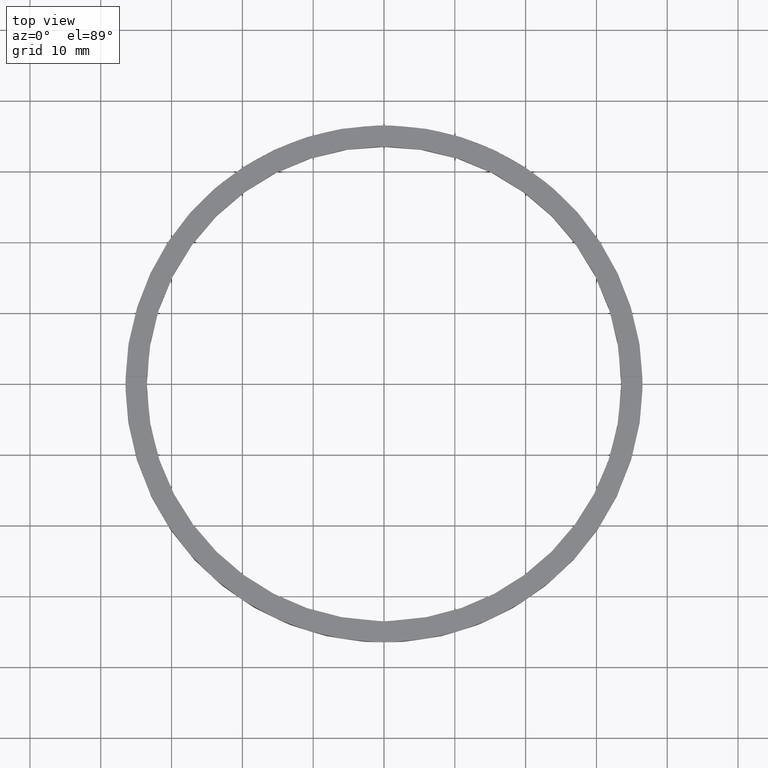
[diagram: clean part render]
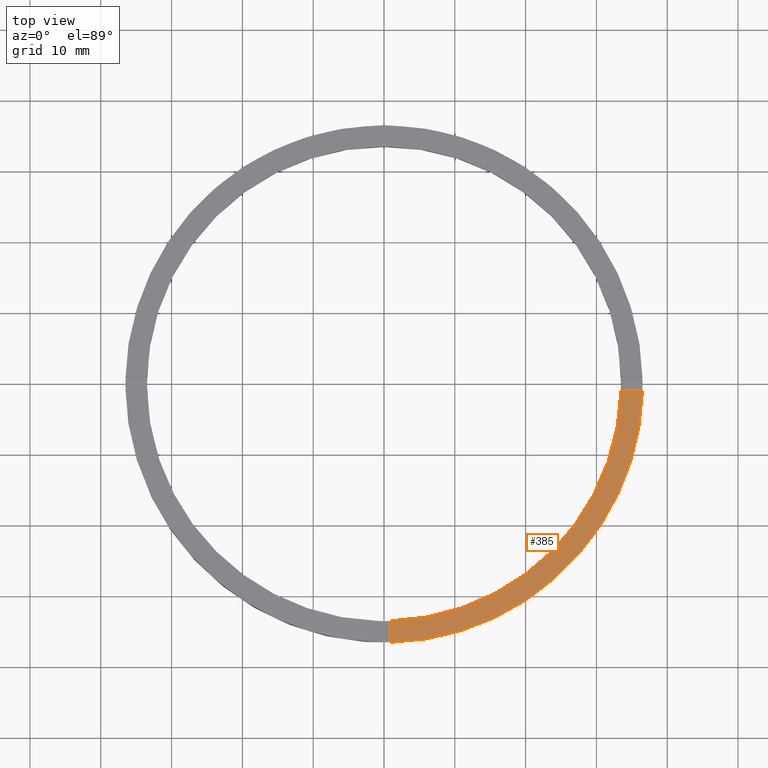
[diagram: same view with one face highlighted and labeled with its STEP entity id]
A machine part, top view. The second image highlights one B-rep face of the part: STEP entity #385.
In plain terms, the highlighted planar face has unit normal (0, 0, 1).
Its self-contained STEP definition (entity closure, byte-faithful):
#16 = AXIS2_PLACEMENT_3D ( 'NONE', #36, #525, #600 ) ;
#36 = CARTESIAN_POINT ( 'NONE',  ( 0.000000000000000000, 0.000000000000000000, 3.500000000000000000 ) ) ;
#45 = DIRECTION ( 'NONE',  ( 1.000000000000000000, 0.000000000000000000, 0.000000000000000000 ) ) ;
#48 = FACE_OUTER_BOUND ( 'NONE', #466, .T. ) ;
#81 = ORIENTED_EDGE ( 'NONE', *, *, #450, .F. ) ;
#85 = LINE ( 'NONE', #262, #328 ) ;
#101 = VERTEX_POINT ( 'NONE', #474 ) ;
#196 = CARTESIAN_POINT ( 'NONE',  ( 0.000000000000000000, 0.000000000000000000, 3.500000000000000000 ) ) ;
#236 = CARTESIAN_POINT ( 'NONE',  ( 0.9999999999998386846, -26.50000000000017764, 3.500000000000000000 ) ) ;
#262 = CARTESIAN_POINT ( 'NONE',  ( 26.49999999999998934, -1.000000000000158318, 3.500000000000000000 ) ) ;
#280 = DIRECTION ( 'NONE',  ( 0.000000000000000000, 0.000000000000000000, 1.000000000000000000 ) ) ;
#295 = VERTEX_POINT ( 'NONE', #402 ) ;
#319 = ORIENTED_EDGE ( 'NONE', *, *, #715, .T. ) ;
#328 = VECTOR ( 'NONE', #355, 1000.000000000000000 ) ;
#341 = CIRCLE ( 'NONE', #16, 33.50000000000000000 ) ;
#351 = VERTEX_POINT ( 'NONE', #773 ) ;
#353 = CIRCLE ( 'NONE', #425, 36.50000000000000000 ) ;
#355 = DIRECTION ( 'NONE',  ( 1.000000000000000000, 6.505213034913025371E-17, 0.000000000000000000 ) ) ;
#385 = ADVANCED_FACE ( 'NONE', ( #48 ), #527, .T. ) ;
#402 = CARTESIAN_POINT ( 'NONE',  ( 0.9999999999998395728, -33.48507130050644776, 3.500000000000000000 ) ) ;
#410 = ORIENTED_EDGE ( 'NONE', *, *, #682, .F. ) ;
#425 = AXIS2_PLACEMENT_3D ( 'NONE', #441, #485, #45 ) ;
#431 = AXIS2_PLACEMENT_3D ( 'NONE', #196, #280, #772 ) ;
#441 = CARTESIAN_POINT ( 'NONE',  ( 0.000000000000000000, 0.000000000000000000, 3.500000000000000000 ) ) ;
#450 = EDGE_CURVE ( 'NONE', #351, #295, #557, .T. ) ;
#466 = EDGE_LOOP ( 'NONE', ( #410, #598, #81, #319 ) ) ;
#474 = CARTESIAN_POINT ( 'NONE',  ( 36.48629879831604939, -1.000000000000157652, 3.500000000000000000 ) ) ;
#485 = DIRECTION ( 'NONE',  ( 0.000000000000000000, 0.000000000000000000, 1.000000000000000000 ) ) ;
#525 = DIRECTION ( 'NONE',  ( 0.000000000000000000, 0.000000000000000000, 1.000000000000000000 ) ) ;
#527 = PLANE ( 'NONE',  #431 ) ;
#545 = VECTOR ( 'NONE', #709, 1000.000000000000000 ) ;
#557 = LINE ( 'NONE', #236, #545 ) ;
#577 = VERTEX_POINT ( 'NONE', #580 ) ;
#580 = CARTESIAN_POINT ( 'NONE',  ( 33.48507130050644065, -1.000000000000157874, 3.500000000000000000 ) ) ;
#598 = ORIENTED_EDGE ( 'NONE', *, *, #765, .F. ) ;
#600 = DIRECTION ( 'NONE',  ( 1.000000000000000000, 0.000000000000000000, 0.000000000000000000 ) ) ;
#682 = EDGE_CURVE ( 'NONE', #577, #101, #85, .T. ) ;
#709 = DIRECTION ( 'NONE',  ( -1.301042606982605074E-16, 1.000000000000000000, -0.000000000000000000 ) ) ;
#715 = EDGE_CURVE ( 'NONE', #351, #101, #353, .T. ) ;
#765 = EDGE_CURVE ( 'NONE', #295, #577, #341, .T. ) ;
#772 = DIRECTION ( 'NONE',  ( 1.000000000000000000, 0.000000000000000000, -0.000000000000000000 ) ) ;
#773 = CARTESIAN_POINT ( 'NONE',  ( 0.9999999999998400169, -36.48629879831606360, 3.500000000000000000 ) ) ;